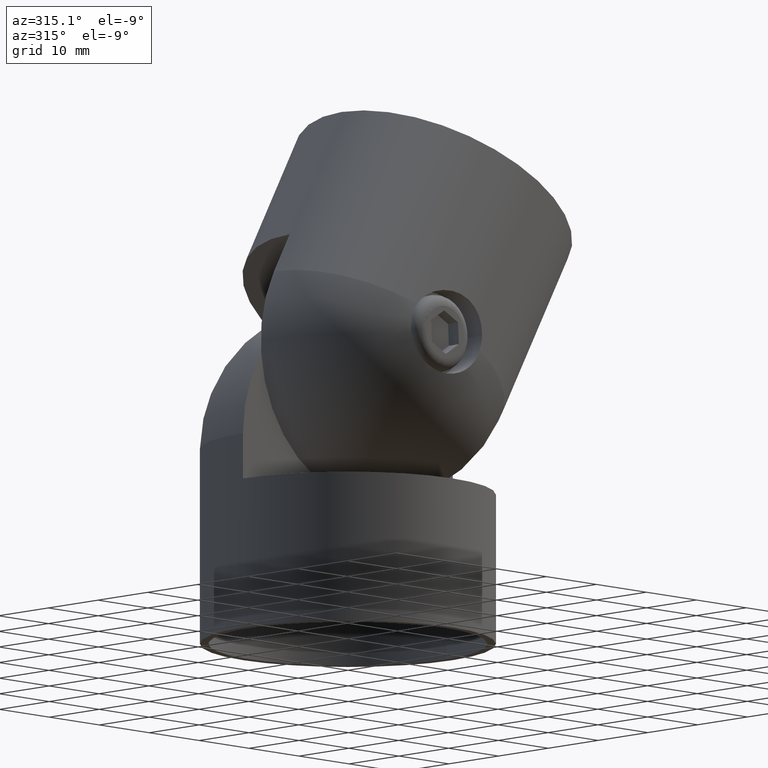
[diagram: clean part render]
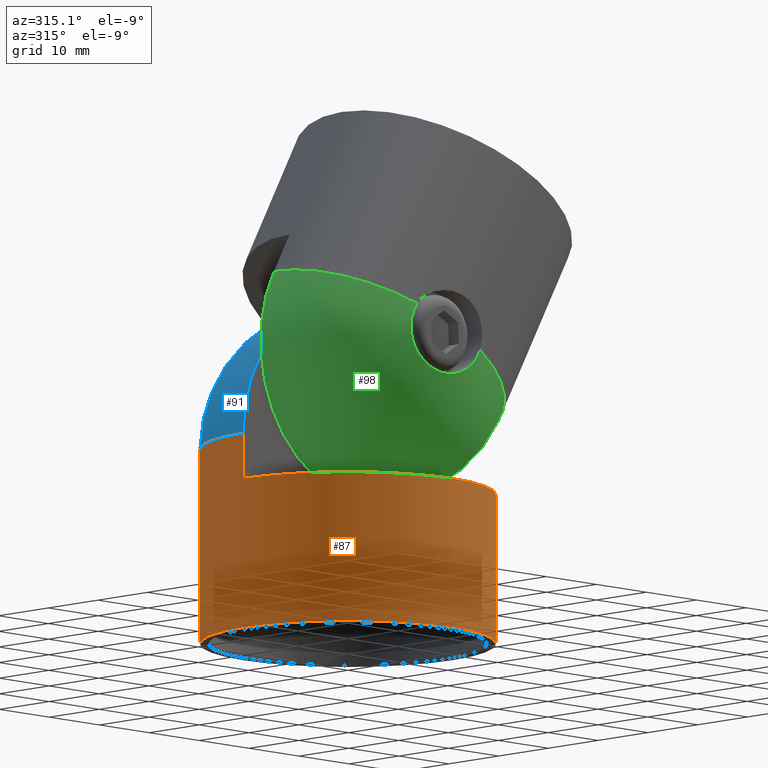
[diagram: same view with three faces highlighted in distinct colors, each labeled with its STEP entity id]
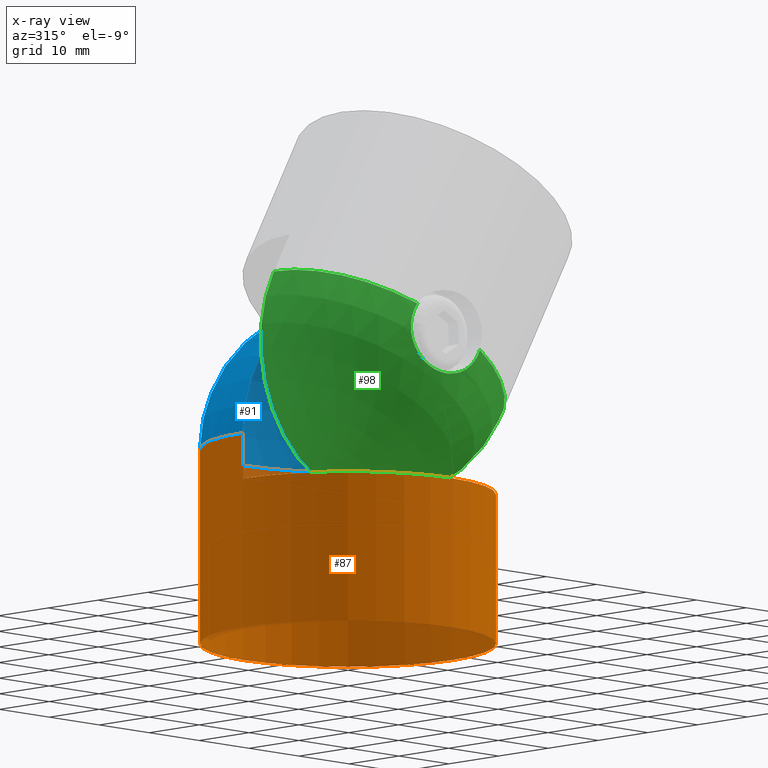
[diagram: x-ray of the same camera — body ghosted, the three highlighted faces saturated]
A machine part, auxiliary view with three faces highlighted in distinct colors.
The next image is the same camera in x-ray (body ghosted, the three faces saturated) — at least one of them is partly hidden behind the body in this view.
Their STEP definitions:

[orange] entity #87 — the highlighted cylindrical surface (bore or boss wall) has radius 21 mm, axis along (0, 0, 1).
#87=ADVANCED_FACE('',(#167,#168),#113,.T.);
#113=CYLINDRICAL_SURFACE('',#440,21.);
#119=LINE('',#606,#143);
#120=LINE('',#611,#144);
#143=VECTOR('',#488,1.);
#144=VECTOR('',#491,1.);
#167=FACE_BOUND('',#189,.T.);
#168=FACE_BOUND('',#190,.T.);
#189=EDGE_LOOP('',(#226));
#190=EDGE_LOOP('',(#227,#228,#229,#230));
#226=ORIENTED_EDGE('',*,*,#350,.T.);
#227=ORIENTED_EDGE('',*,*,#351,.T.);
#228=ORIENTED_EDGE('',*,*,#352,.T.);
#229=ORIENTED_EDGE('',*,*,#353,.T.);
#230=ORIENTED_EDGE('',*,*,#354,.F.);
#316=VERTEX_POINT('',#605);
#317=VERTEX_POINT('',#607);
#318=VERTEX_POINT('',#608);
#319=VERTEX_POINT('',#610);
#320=VERTEX_POINT('',#612);
#350=EDGE_CURVE('',#316,#316,#395,.T.);
#351=EDGE_CURVE('',#317,#318,#119,.T.);
#352=EDGE_CURVE('',#318,#319,#396,.T.);
#353=EDGE_CURVE('',#319,#320,#120,.T.);
#354=EDGE_CURVE('',#317,#320,#397,.T.);
#395=CIRCLE('',#437,21.);
#396=CIRCLE('',#438,21.);
#397=CIRCLE('',#439,21.);
#437=AXIS2_PLACEMENT_3D('',#604,#486,#487);
#438=AXIS2_PLACEMENT_3D('',#609,#489,#490);
#439=AXIS2_PLACEMENT_3D('',#613,#492,#493);
#440=AXIS2_PLACEMENT_3D('',#614,#494,#495);
#486=DIRECTION('',(0.,0.,1.));
#487=DIRECTION('',(1.,0.,0.));
#488=DIRECTION('',(0.,0.,1.));
#489=DIRECTION('',(0.,0.,-1.));
#490=DIRECTION('',(1.,0.,0.));
#491=DIRECTION('',(0.,0.,-1.));
#492=DIRECTION('',(0.,0.,1.));
#493=DIRECTION('',(1.,0.,0.));
#494=DIRECTION('',(0.,0.,1.));
#495=DIRECTION('',(1.,0.,0.));
#604=CARTESIAN_POINT('',(0.,0.,0.));
#605=CARTESIAN_POINT('',(21.,0.,0.));
#606=CARTESIAN_POINT('',(-21.,4.9201125312466E-14,21.4));
#607=CARTESIAN_POINT('',(-21.,0.,21.4));
#608=CARTESIAN_POINT('',(-21.,4.9201125312466E-14,27.9));
#609=CARTESIAN_POINT('',(0.,0.,27.9));
#610=CARTESIAN_POINT('',(21.,0.,27.9));
#611=CARTESIAN_POINT('',(21.,0.,21.4));
#612=CARTESIAN_POINT('',(21.,0.,21.4));
#613=CARTESIAN_POINT('',(0.,0.,21.4));
#614=CARTESIAN_POINT('',(0.,0.,0.));

[blue] entity #91 — the highlighted spherical surface has radius 21 mm.
#53=SPHERICAL_SURFACE('',#447,21.);
#57=FACE_OUTER_BOUND('',#195,.T.);
#91=ADVANCED_FACE('',(#57),#53,.T.);
#195=EDGE_LOOP('',(#240,#241,#242));
#240=ORIENTED_EDGE('',*,*,#352,.F.);
#241=ORIENTED_EDGE('',*,*,#357,.F.);
#242=ORIENTED_EDGE('',*,*,#356,.F.);
#318=VERTEX_POINT('',#608);
#319=VERTEX_POINT('',#610);
#322=VERTEX_POINT('',#619);
#352=EDGE_CURVE('',#318,#319,#396,.T.);
#356=EDGE_CURVE('',#319,#322,#399,.T.);
#357=EDGE_CURVE('',#322,#318,#400,.T.);
#396=CIRCLE('',#438,21.);
#399=CIRCLE('',#443,21.);
#400=CIRCLE('',#444,21.);
#438=AXIS2_PLACEMENT_3D('',#609,#489,#490);
#443=AXIS2_PLACEMENT_3D('',#618,#500,#501);
#444=AXIS2_PLACEMENT_3D('',#620,#502,#503);
#447=AXIS2_PLACEMENT_3D('',#624,#509,#510);
#489=DIRECTION('',(0.,0.,-1.));
#490=DIRECTION('',(1.,0.,0.));
#500=DIRECTION('',(-2.34291072916505E-15,-1.,0.));
#501=DIRECTION('',(-1.,2.34291072916505E-15,0.));
#502=DIRECTION('',(-2.34291072916505E-15,-1.,0.));
#503=DIRECTION('',(-1.,2.34291072916505E-15,0.));
#509=DIRECTION('',(6.12323399573677E-17,0.,1.));
#510=DIRECTION('',(1.,0.,0.));
#608=CARTESIAN_POINT('',(-21.,4.9201125312466E-14,27.9));
#609=CARTESIAN_POINT('',(0.,0.,27.9));
#610=CARTESIAN_POINT('',(21.,0.,27.9));
#618=CARTESIAN_POINT('',(0.,0.,27.9));
#619=CARTESIAN_POINT('',(0.,0.,48.9));
#620=CARTESIAN_POINT('',(0.,0.,27.9));
#624=CARTESIAN_POINT('',(0.,0.,27.9));

[green] entity #98 — the highlighted spherical surface has radius 21 mm.
#38=B_SPLINE_CURVE_WITH_KNOTS('',3,(#688,#689,#690,#691,#692,#693,#694,
#695,#696,#697,#698,#699,#700,#701,#702,#703,#704,#705,#706,#707,#708,#709,
#710,#711,#712,#713,#714,#715,#716,#717,#718,#719,#720,#721,#722,#723,#724,
#725,#726,#727,#728,#729,#730,#731,#732,#733),.UNSPECIFIED.,.F.,.F.,(4,
2,2,2,2,2,2,2,1,2,2,2,2,2,1,2,2,2,2,2,2,2,2,4),(0.,0.0625000000000008,0.0937500000000012,
0.125000000000002,0.156250000000002,0.187500000000002,0.250000000000003,
0.281250000000003,0.312500000000003,0.343750000000003,0.375000000000003,
0.437500000000003,0.500000000000003,0.531250000000003,0.562500000000003,
0.593750000000003,0.625000000000002,0.687500000000002,0.750000000000002,
0.812500000000002,0.875000000000002,0.906250000000001,0.937500000000001,
1.),.UNSPECIFIED.);
#54=SPHERICAL_SURFACE('',#462,21.);
#61=FACE_OUTER_BOUND('',#205,.T.);
#98=ADVANCED_FACE('',(#61),#54,.T.);
#205=EDGE_LOOP('',(#262,#263,#264,#265,#266));
#262=ORIENTED_EDGE('',*,*,#371,.F.);
#263=ORIENTED_EDGE('',*,*,#365,.F.);
#264=ORIENTED_EDGE('',*,*,#369,.F.);
#265=ORIENTED_EDGE('',*,*,#368,.F.);
#266=ORIENTED_EDGE('',*,*,#361,.F.);
#324=VERTEX_POINT('',#665);
#325=VERTEX_POINT('',#666);
#326=VERTEX_POINT('',#668);
#329=VERTEX_POINT('',#674);
#332=VERTEX_POINT('',#683);
#361=EDGE_CURVE('',#324,#326,#402,.T.);
#365=EDGE_CURVE('',#329,#325,#404,.T.);
#368=EDGE_CURVE('',#326,#332,#407,.T.);
#369=EDGE_CURVE('',#332,#329,#408,.T.);
#371=EDGE_CURVE('',#325,#324,#38,.T.);
#402=CIRCLE('',#451,21.);
#404=CIRCLE('',#453,21.);
#407=CIRCLE('',#458,21.);
#408=CIRCLE('',#459,21.);
#451=AXIS2_PLACEMENT_3D('',#667,#517,#518);
#453=AXIS2_PLACEMENT_3D('',#675,#523,#524);
#458=AXIS2_PLACEMENT_3D('',#682,#533,#534);
#459=AXIS2_PLACEMENT_3D('',#684,#535,#536);
#462=AXIS2_PLACEMENT_3D('',#734,#542,#543);
#517=DIRECTION('',(0.484809620246339,0.,0.874619707139395));
#518=DIRECTION('',(0.874619707139395,0.,-0.484809620246339));
#523=DIRECTION('',(0.484809620246339,0.,0.874619707139395));
#524=DIRECTION('',(0.874619707139395,0.,-0.484809620246339));
#533=DIRECTION('',(-2.04915589579608E-15,1.,1.13586566087758E-15));
#534=DIRECTION('',(-0.874619707139395,-2.34291072916505E-15,0.484809620246339));
#535=DIRECTION('',(-2.04915589579608E-15,1.,1.13586566087758E-15));
#536=DIRECTION('',(-0.874619707139395,-2.34291072916505E-15,0.484809620246339));
#542=DIRECTION('',(-0.484809620246339,0.,-0.874619707139395));
#543=DIRECTION('',(0.874619707139395,0.,-0.484809620246339));
#665=CARTESIAN_POINT('',(5.631459728409,-20.8653489895759,40.4945746023323));
#666=CARTESIAN_POINT('',(-4.74003931256345,-18.7364209980224,46.243590397877));
#667=CARTESIAN_POINT('',(3.55486654045628,0.,41.6456490025996));
#668=CARTESIAN_POINT('',(21.9218803903836,0.,31.4646469774265));
#674=CARTESIAN_POINT('',(-14.812147309471,-4.9201125312466E-14,51.8266510277727));
#675=CARTESIAN_POINT('',(3.55486654045628,0.,41.6456490025996));
#682=CARTESIAN_POINT('',(3.55486654045628,0.,41.6456490025996));
#683=CARTESIAN_POINT('',(-6.62613548471683,0.,23.2786351526723));
#684=CARTESIAN_POINT('',(3.55486654045628,0.,41.6456490025996));
#688=CARTESIAN_POINT('',(-4.74003931256345,-18.7364209980224,46.243590397877));
#689=CARTESIAN_POINT('',(-5.005064644211,-18.7028941387489,45.9020926079737));
#690=CARTESIAN_POINT('',(-5.23184163219399,-18.6778158803472,45.5345832871917));
#691=CARTESIAN_POINT('',(-5.51291221967704,-18.653412515995,44.9431183316053));
#692=CARTESIAN_POINT('',(-5.59616996048597,-18.6475614948799,44.7398523277047));
#693=CARTESIAN_POINT('',(-5.73867408234116,-18.6406073518014,44.3298571190422));
#694=CARTESIAN_POINT('',(-5.79850826916706,-18.6394503151159,44.1219487728855));
#695=CARTESIAN_POINT('',(-5.89556832081584,-18.6417326806936,43.7003685760937));
#696=CARTESIAN_POINT('',(-5.93279521080218,-18.6451718874564,43.4866969868107));
#697=CARTESIAN_POINT('',(-5.98406281690465,-18.6567564359478,43.0534429876172));
#698=CARTESIAN_POINT('',(-5.99789461105143,-18.6649359373591,42.8339728570368));
#699=CARTESIAN_POINT('',(-6.00353508915382,-18.6959077076164,42.1830169038974));
#700=CARTESIAN_POINT('',(-5.96071855160726,-18.7251768462812,41.753438787704));
#701=CARTESIAN_POINT('',(-5.82637532168242,-18.7818791041821,41.1156725959658));
#702=CARTESIAN_POINT('',(-5.76956006137031,-18.8029858917621,40.9040042710392));
#703=CARTESIAN_POINT('',(-5.63506954171748,-18.8484476613195,40.4931116407023));
#704=CARTESIAN_POINT('',(-5.47926940522332,-18.8973734990367,40.0920035052531));
#705=CARTESIAN_POINT('',(-5.28166850589968,-18.9530125793125,39.7100778317259));
#706=CARTESIAN_POINT('',(-5.06284015681443,-19.0120183911821,39.3378879257667));
#707=CARTESIAN_POINT('',(-4.94240527689543,-19.0432974956123,39.1562933683699));
#708=CARTESIAN_POINT('',(-4.55557273181202,-19.14043897895,38.6364684204424));
#709=CARTESIAN_POINT('',(-4.25885370320439,-19.2107917553116,38.3170073196767));
#710=CARTESIAN_POINT('',(-3.61257984339421,-19.3567052647037,37.7553697072976));
#711=CARTESIAN_POINT('',(-3.26335610145098,-19.4322767826363,37.5118949174931));
#712=CARTESIAN_POINT('',(-2.70034333887597,-19.5494282999471,37.2027255891626));
#713=CARTESIAN_POINT('',(-2.50514848514202,-19.5892996637663,37.1088084693482));
#714=CARTESIAN_POINT('',(-2.11007366931762,-19.6685587250877,36.9442007630749));
#715=CARTESIAN_POINT('',(-1.70867430954946,-19.747688151343,36.8016912152975));
#716=CARTESIAN_POINT('',(-1.29487619412318,-19.8265587994243,36.7025001720086));
#717=CARTESIAN_POINT('',(-0.874792324807284,-19.9053036711166,36.6252738295638));
#718=CARTESIAN_POINT('',(-0.660316595590544,-19.9448453434472,36.5975809114171));
#719=CARTESIAN_POINT('',(-0.0179129368609776,-20.0613254368003,36.549676777805));
#720=CARTESIAN_POINT('',(0.407882890431866,-20.1359759171494,36.5636371156888));
#721=CARTESIAN_POINT('',(1.25456572104934,-20.2795325505563,36.6820764263793));
#722=CARTESIAN_POINT('',(1.67835856986813,-20.34884355732,36.7886251015775));
#723=CARTESIAN_POINT('',(2.48173525313477,-20.4753821346572,37.0855488788088));
#724=CARTESIAN_POINT('',(2.86607818490479,-20.5334512912254,37.2759058432336));
#725=CARTESIAN_POINT('',(3.59845622054216,-20.6390059324004,37.7442081573699));
#726=CARTESIAN_POINT('',(3.9354492690296,-20.6848825654918,38.0155126076742));
#727=CARTESIAN_POINT('',(4.39264877617737,-20.7430494091096,38.4721970668432));
#728=CARTESIAN_POINT('',(4.53727273037314,-20.7606969525701,38.6330030024096));
#729=CARTESIAN_POINT('',(4.81043861181969,-20.7924196293465,38.9723513140356));
#730=CARTESIAN_POINT('',(4.93840014628039,-20.806415146589,39.1504467743903));
#731=CARTESIAN_POINT('',(5.28862315483804,-20.842027435116,39.6982345636021));
#732=CARTESIAN_POINT('',(5.48098082727711,-20.8577456587123,40.0852790669055));
#733=CARTESIAN_POINT('',(5.631459728409,-20.8653489895759,40.4945746023323));
#734=CARTESIAN_POINT('',(3.55486654045628,0.,41.6456490025996));